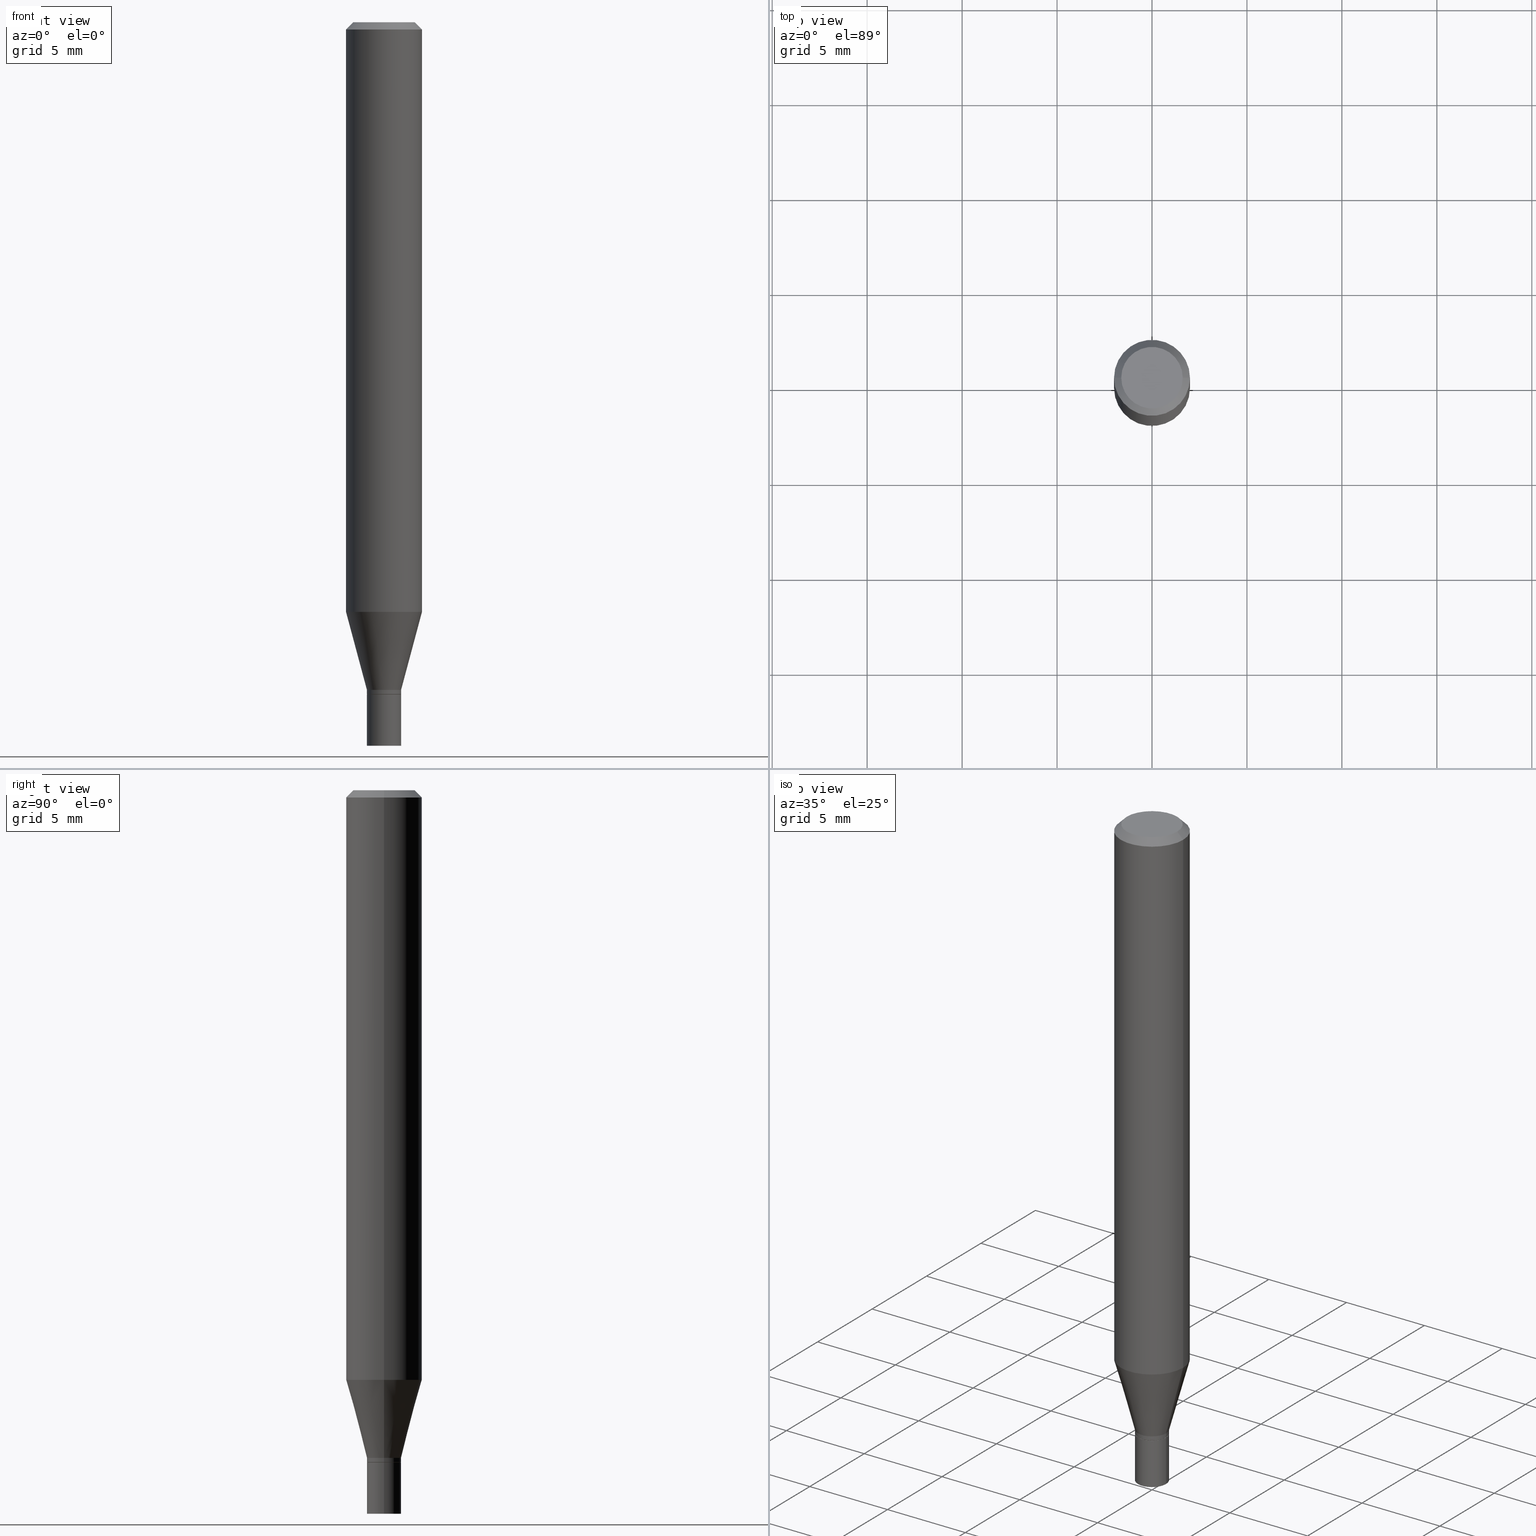
[diagram: canonical four-view strip — front | top / right | iso, engineering-drawing reading convention]
A machine part, canonical four-view strip (front | top / right | iso — engineering-drawing reading convention). The complete STEP part file that produces these views, byte-faithful:
ISO-10303-21;
HEADER;
FILE_DESCRIPTION (( 'STEP AP203' ),
    '1' );
FILE_NAME ('02899.STEP',
    '2024-03-18T22:06:29',
    ( '' ),
    ( '' ),
    'SwSTEP 2.0',
    'SolidWorks 2023',
    '' );
FILE_SCHEMA (( 'CONFIG_CONTROL_DESIGN' ));
ENDSEC;

DATA;
#1 = ORIENTED_EDGE ( 'NONE', *, *, #141, .T. ) ;
#2 = APPLICATION_PROTOCOL_DEFINITION ( 'international standard', 'config_control_design', 1994, #364 ) ;
#3 = ORIENTED_EDGE ( 'NONE', *, *, #255, .T. ) ;
#4 = CARTESIAN_POINT ( 'NONE',  ( -0.03544999999999992601, -4.612444401449317008E-15, -1.393200000000000216 ) ) ;
#5 = DIRECTION ( 'NONE',  ( -2.445468806185136597E-29, 3.491481338843145583E-15, 1.000000000000000000 ) ) ;
#6 = DATE_TIME_ROLE ( 'creation_date' ) ;
#7 = ORIENTED_EDGE ( 'NONE', *, *, #426, .F. ) ;
#8 = DIRECTION ( 'NONE',  ( 2.445468806185136597E-29, -3.491481338843145583E-15, -1.000000000000000000 ) ) ;
#9 = PERSON_AND_ORGANIZATION ( #425, #453 ) ;
#10 = CONICAL_SURFACE ( 'NONE', #260, 0.07875000000000000056, 0.7853981633974415066 ) ;
#11 = VECTOR ( 'NONE', #195, 39.37007874015748143 ) ;
#12 = LINE ( 'NONE', #269, #11 ) ;
#13 = EDGE_CURVE ( 'NONE', #17, #87, #405, .T. ) ;
#14 = DIRECTION ( 'NONE',  ( -2.445468806185136597E-29, 3.491481338843145583E-15, 1.000000000000000000 ) ) ;
#15 = CARTESIAN_POINT ( 'NONE',  ( 0.03495000000000000190, -5.110132087530827984E-15, -1.393700000000000161 ) ) ;
#16 = ORIENTED_EDGE ( 'NONE', *, *, #300, .T. ) ;
#17 = VERTEX_POINT ( 'NONE', #464 ) ;
#18 = EDGE_LOOP ( 'NONE', ( #52, #94, #392, #199 ) ) ;
#19 = ADVANCED_FACE ( 'NONE', ( #290 ), #135, .T. ) ;
#20 = EDGE_LOOP ( 'NONE', ( #51, #167 ) ) ;
#21 = CIRCLE ( 'NONE', #433, 0.07875000000000000056 ) ;
#22 = CARTESIAN_POINT ( 'NONE',  ( -0.03544999999999992601, 2.518873998269549902E-16, -1.743762489495360585E-30 ) ) ;
#23 = CARTESIAN_POINT ( 'NONE',  ( 3.407027140777133395E-29, -4.864331801276271604E-15, -1.393200000000000216 ) ) ;
#24 = VERTEX_POINT ( 'NONE', #328 ) ;
#25 = FACE_OUTER_BOUND ( 'NONE', #153, .T. ) ;
#26 = DIRECTION ( 'NONE',  ( -2.445468806185136877E-29, 3.491481338843145188E-15, 1.000000000000000000 ) ) ;
#27 = EDGE_LOOP ( 'NONE', ( #344, #130, #105, #196 ) ) ;
#28 = CARTESIAN_POINT ( 'NONE',  ( 0.03495000000000000190, -5.110132087530827984E-15, -1.393700000000000161 ) ) ;
#29 = EDGE_LOOP ( 'NONE', ( #68, #316, #446, #91 ) ) ;
#30 = VECTOR ( 'NONE', #247, 39.37007874015748143 ) ;
#31 = ADVANCED_FACE ( 'NONE', ( #358 ), #291, .T. ) ;
#32 = SHAPE_DEFINITION_REPRESENTATION ( #128, #108 ) ;
#33 = CARTESIAN_POINT ( 'NONE',  ( -0.07875000000000001443, -3.708442065562388790E-15, -1.222402200032267405 ) ) ;
#34 = DIRECTION ( 'NONE',  ( -0.7071067811865656694, 7.493145998870420424E-15, 0.7071067811865294761 ) ) ;
#35 = AXIS2_PLACEMENT_3D ( 'NONE', #40, #407, #435 ) ;
#36 = AXIS2_PLACEMENT_3D ( 'NONE', #341, #444, #119 ) ;
#37 = DIRECTION ( 'NONE',  ( 0.2588190451025209615, 1.565188264969624926E-15, 0.9659258262890682012 ) ) ;
#38 = DIRECTION ( 'NONE',  ( 2.445468806185136597E-29, -3.491481338843145583E-15, -1.000000000000000000 ) ) ;
#39 = CIRCLE ( 'NONE', #331, 0.03495000000000000190 ) ;
#40 = CARTESIAN_POINT ( 'NONE',  ( 3.408249875180225636E-29, -4.866077541945693107E-15, -1.393700000000000161 ) ) ;
#41 = AXIS2_PLACEMENT_3D ( 'NONE', #315, #420, #95 ) ;
#42 = CARTESIAN_POINT ( 'NONE',  ( 0.03544999999999992601, -5.079756199882890666E-15, -1.384000000000000119 ) ) ;
#43 = ORIENTED_EDGE ( 'NONE', *, *, #366, .F. ) ;
#44 =( CONVERSION_BASED_UNIT ( 'INCH', #369 ) LENGTH_UNIT ( ) NAMED_UNIT ( #53 ) );
#45 = DIRECTION ( 'NONE',  ( -2.445468806185136597E-29, 3.491481338843145583E-15, 1.000000000000000000 ) ) ;
#46 = PERSON_AND_ORGANIZATION ( #425, #453 ) ;
#47 = ADVANCED_FACE ( 'NONE', ( #259 ), #357, .T. ) ;
#48 = ORIENTED_EDGE ( 'NONE', *, *, #249, .T. ) ;
#49 = APPLICATION_PROTOCOL_DEFINITION ( 'international standard', 'config_control_design', 1994, #207 ) ;
#50 = AXIS2_PLACEMENT_3D ( 'NONE', #157, #187, #252 ) ;
#51 = ORIENTED_EDGE ( 'NONE', *, *, #238, .T. ) ;
#52 = ORIENTED_EDGE ( 'NONE', *, *, #83, .T. ) ;
#53 = DIMENSIONAL_EXPONENTS ( 1.000000000000000000, 0.000000000000000000, 0.000000000000000000, 0.000000000000000000, 0.000000000000000000, 0.000000000000000000, 0.000000000000000000 ) ;
#54 = CALENDAR_DATE ( 2024, 18, 3 ) ;
#55 = ADVANCED_FACE ( 'NONE', ( #439 ), #324, .T. ) ;
#56 = VERTEX_POINT ( 'NONE', #370 ) ;
#57 = DIRECTION ( 'NONE',  ( 1.000000000000000000, -6.982962677686266711E-15, 4.876176775795935793E-29 ) ) ;
#58 = ORIENTED_EDGE ( 'NONE', *, *, #147, .F. ) ;
#59 = ORIENTED_EDGE ( 'NONE', *, *, #449, .F. ) ;
#60 = DIRECTION ( 'NONE',  ( 2.438088387897960049E-29, -3.491481338843145188E-15, -1.000000000000000000 ) ) ;
#61 = AXIS2_PLACEMENT_3D ( 'NONE', #333, #5, #189 ) ;
#62 = CONICAL_SURFACE ( 'NONE', #35, 0.03495000000000000190, 0.7853981633974739252 ) ;
#63 = ORIENTED_EDGE ( 'NONE', *, *, #396, .T. ) ;
#64 = PRODUCT_DEFINITION_FORMATION_WITH_SPECIFIED_SOURCE ( 'ANY', '', #310, .NOT_KNOWN. ) ;
#65 = DIRECTION ( 'NONE',  ( -1.000000000000000000, 6.982962677686265922E-15, -4.876176775795935793E-29 ) ) ;
#66 = APPROVAL_ROLE ( '' ) ;
#67 = LINE ( 'NONE', #208, #143 ) ;
#68 = ORIENTED_EDGE ( 'NONE', *, *, #249, .F. ) ;
#69 = ADVANCED_FACE ( 'NONE', ( #227 ), #62, .T. ) ;
#70 = AXIS2_PLACEMENT_3D ( 'NONE', #142, #356, #283 ) ;
#71 = FACE_OUTER_BOUND ( 'NONE', #150, .T. ) ;
#72 = ADVANCED_FACE ( 'NONE', ( #121 ), #10, .T. ) ;
#73 = LINE ( 'NONE', #100, #30 ) ;
#74 = EDGE_CURVE ( 'NONE', #429, #161, #403, .T. ) ;
#75 = UNCERTAINTY_MEASURE_WITH_UNIT (LENGTH_MEASURE( 1.000000000000000082E-05 ), #44, 'distance_accuracy_value', 'NONE');
#76 = CIRCLE ( 'NONE', #313, 0.07875000000000000056 ) ;
#77 = MANIFOLD_SOLID_BREP ( 'Body-Move/Copy2[2]', #325 ) ;
#78 = CARTESIAN_POINT ( 'NONE',  ( 3.668203209277705088E-31, -5.237222008264718399E-17, -0.01499999999999999944 ) ) ;
#79 = DIRECTION ( 'NONE',  ( -2.445468806185136597E-29, 3.491481338843145583E-15, 1.000000000000000000 ) ) ;
#80 = CIRCLE ( 'NONE', #378, 0.03544999999999992601 ) ;
#81 = DIRECTION ( 'NONE',  ( 1.000000000000000000, -6.982962677686269077E-15, 0.000000000000000000 ) ) ;
#82 = CC_DESIGN_APPROVAL ( #168, ( #185 ) ) ;
#83 = EDGE_CURVE ( 'NONE', #456, #56, #394, .T. ) ;
#84 = ADVANCED_FACE ( 'NONE', ( #112 ), #225, .F. ) ;
#85 = PERSON_AND_ORGANIZATION_ROLE ( 'creator' ) ;
#86 = PERSON_AND_ORGANIZATION ( #425, #453 ) ;
#87 = VERTEX_POINT ( 'NONE', #98 ) ;
#88 = DATE_AND_TIME ( #113, #265 ) ;
#89 = DIRECTION ( 'NONE',  ( 1.000000000000000000, -6.982962677686265922E-15, 4.852736867747365646E-29 ) ) ;
#90 = FACE_OUTER_BOUND ( 'NONE', #160, .T. ) ;
#91 = ORIENTED_EDGE ( 'NONE', *, *, #216, .F. ) ;
#92 = ORIENTED_EDGE ( 'NONE', *, *, #460, .T. ) ;
#93 = CARTESIAN_POINT ( 'NONE',  ( 4.451638707024993845E-16, 0.06375000000000000111, -1.187890929748605601E-16 ) ) ;
#94 = ORIENTED_EDGE ( 'NONE', *, *, #274, .T. ) ;
#95 = DIRECTION ( 'NONE',  ( 1.000000000000000000, -6.982962677686254089E-15, 0.000000000000000000 ) ) ;
#96 = AXIS2_PLACEMENT_3D ( 'NONE', #296, #362, #57 ) ;
#97 = DIRECTION ( 'NONE',  ( -2.445468806185136597E-29, 3.491481338843145583E-15, 1.000000000000000000 ) ) ;
#98 = CARTESIAN_POINT ( 'NONE',  ( -0.07875000000000000056, -1.600630940616978731E-15, -0.01499999999999999944 ) ) ;
#99 = LINE ( 'NONE', #455, #354 ) ;
#100 = CARTESIAN_POINT ( 'NONE',  ( 0.07875000000000000056, -5.499083108677934443E-16, 3.839989210939299016E-30 ) ) ;
#101 = EDGE_LOOP ( 'NONE', ( #408, #7, #332, #16 ) ) ;
#102 = EDGE_CURVE ( 'NONE', #237, #17, #73, .T. ) ;
#103 = CC_DESIGN_PERSON_AND_ORGANIZATION_ASSIGNMENT ( #186, #436, ( #185 ) ) ;
#104 = APPROVAL_PERSON_ORGANIZATION ( #443, #168, #219 ) ;
#105 = ORIENTED_EDGE ( 'NONE', *, *, #102, .T. ) ;
#106 = DIRECTION ( 'NONE',  ( 1.000000000000000000, -6.982962677686265922E-15, 4.876176775795935232E-29 ) ) ;
#107 = AXIS2_PLACEMENT_3D ( 'NONE', #170, #423, #136 ) ;
#108 = ADVANCED_BREP_SHAPE_REPRESENTATION ( '02899', ( #376, #77, #285 ), #365 ) ;
#109 = EDGE_CURVE ( 'NONE', #456, #429, #454, .T. ) ;
#110 = CARTESIAN_POINT ( 'NONE',  ( 3.408249875180225636E-29, -4.866077541945693107E-15, -1.393700000000000161 ) ) ;
#111 = CARTESIAN_POINT ( 'NONE',  ( 0.000000000000000000, 0.000000000000000000, 0.000000000000000000 ) ) ;
#112 = FACE_OUTER_BOUND ( 'NONE', #126, .T. ) ;
#113 = CALENDAR_DATE ( 2024, 18, 3 ) ;
#114 = ADVANCED_FACE ( 'NONE', ( #140 ), #176, .T. ) ;
#115 = ADVANCED_FACE ( 'NONE', ( #71 ), #388, .T. ) ;
#116 = DIRECTION ( 'NONE',  ( -2.445468806185136597E-29, 3.491481338843145583E-15, 1.000000000000000000 ) ) ;
#117 = CARTESIAN_POINT ( 'NONE',  ( -0.07875000000000000056, 4.975360907851462665E-16, -0.01499999999999999944 ) ) ;
#118 = CIRCLE ( 'NONE', #271, 0.03545000000000000234 ) ;
#119 = DIRECTION ( 'NONE',  ( 1.000000000000000000, -6.982962677686269077E-15, 0.000000000000000000 ) ) ;
#120 = AXIS2_PLACEMENT_3D ( 'NONE', #308, #293, #89 ) ;
#121 = FACE_OUTER_BOUND ( 'NONE', #124, .T. ) ;
#122 = APPROVAL_DATE_TIME ( #339, #462 ) ;
#123 = CONICAL_SURFACE ( 'NONE', #428, 0.03495000000000000190, 0.7853981633974739252 ) ;
#124 = EDGE_LOOP ( 'NONE', ( #270, #239, #254, #367 ) ) ;
#125 = COORDINATED_UNIVERSAL_TIME_OFFSET ( 5, 0, .BEHIND. ) ;
#126 = EDGE_LOOP ( 'NONE', ( #282, #171 ) ) ;
#127 = APPROVAL_STATUS ( 'not_yet_approved' ) ;
#128 = PRODUCT_DEFINITION_SHAPE ( 'NONE', 'NONE',  #185 ) ;
#129 = AXIS2_PLACEMENT_3D ( 'NONE', #93, #243, #65 ) ;
#130 = ORIENTED_EDGE ( 'NONE', *, *, #366, .T. ) ;
#131 = CC_DESIGN_PERSON_AND_ORGANIZATION_ASSIGNMENT ( #9, #268, ( #64 ) ) ;
#132 = VERTEX_POINT ( 'NONE', #33 ) ;
#133 = DIRECTION ( 'NONE',  ( -2.445468806185136597E-29, 3.491481338843145583E-15, 1.000000000000000000 ) ) ;
#134 = DIRECTION ( 'NONE',  ( -1.000000000000000000, 6.982962677686265922E-15, -4.876176775795935793E-29 ) ) ;
#135 = CONICAL_SURFACE ( 'NONE', #244, 0.07875000000000000056, 0.7853981633974415066 ) ;
#136 = DIRECTION ( 'NONE',  ( 1.000000000000000000, -6.982962677686265922E-15, 4.852736867747365646E-29 ) ) ;
#137 = CARTESIAN_POINT ( 'NONE',  ( 0.03544999999999992601, -5.111877828200249487E-15, -1.393200000000000216 ) ) ;
#138 = LOCAL_TIME ( 18, 6, 29.00000000000000000, #342 ) ;
#139 = DIRECTION ( 'NONE',  ( -2.445468806185136877E-29, 3.491481338843145188E-15, 1.000000000000000000 ) ) ;
#140 = FACE_OUTER_BOUND ( 'NONE', #27, .T. ) ;
#141 = EDGE_CURVE ( 'NONE', #452, #411, #118, .T. ) ;
#142 = CARTESIAN_POINT ( 'NONE',  ( 3.384528827760229323E-29, -4.832210172958913572E-15, -1.384000000000000119 ) ) ;
#143 = VECTOR ( 'NONE', #26, 39.37007874015748143 ) ;
#144 = CARTESIAN_POINT ( 'NONE',  ( 0.000000000000000000, 0.000000000000000000, 0.000000000000000000 ) ) ;
#145 = DIRECTION ( 'NONE',  ( 1.000000000000000000, -6.982962677686265922E-15, 0.000000000000000000 ) ) ;
#146 = DIRECTION ( 'NONE',  ( 1.000000000000000000, -6.982962677686261977E-15, 0.000000000000000000 ) ) ;
#147 = EDGE_CURVE ( 'NONE', #56, #456, #39, .T. ) ;
#148 = LINE ( 'NONE', #175, #326 ) ;
#149 = CIRCLE ( 'NONE', #222, 0.07875000000000000056 ) ;
#150 = EDGE_LOOP ( 'NONE', ( #211, #350, #297, #235 ) ) ;
#151 = DIRECTION ( 'NONE',  ( -2.445468806185136877E-29, 3.491481338843145188E-15, 1.000000000000000000 ) ) ;
#152 = ADVANCED_FACE ( 'NONE', ( #287 ), #262, .F. ) ;
#153 = EDGE_LOOP ( 'NONE', ( #1, #48, #440, #248 ) ) ;
#154 = FACE_OUTER_BOUND ( 'NONE', #162, .T. ) ;
#155 = CALENDAR_DATE ( 2024, 18, 3 ) ;
#156 = PLANE ( 'NONE',  #203 ) ;
#157 = CARTESIAN_POINT ( 'NONE',  ( 3.576687321579069994E-29, -5.368277968210015545E-15, -1.500000000000000222 ) ) ;
#158 =( LENGTH_UNIT ( ) NAMED_UNIT ( * ) SI_UNIT ( $, .METRE. ) );
#159 = CARTESIAN_POINT ( 'NONE',  ( 0.000000000000000000, 0.000000000000000000, 0.000000000000000000 ) ) ;
#160 = EDGE_LOOP ( 'NONE', ( #347, #3 ) ) ;
#161 = VERTEX_POINT ( 'NONE', #200 ) ;
#162 = EDGE_LOOP ( 'NONE', ( #343, #442, #398, #384 ) ) ;
#163 = CIRCLE ( 'NONE', #312, 0.03545000000000000234 ) ;
#164 = VECTOR ( 'NONE', #37, 39.37007874015748143 ) ;
#165 = DIRECTION ( 'NONE',  ( -2.445468806185136597E-29, 3.491481338843145583E-15, 1.000000000000000000 ) ) ;
#166 = EDGE_CURVE ( 'NONE', #411, #452, #163, .T. ) ;
#167 = ORIENTED_EDGE ( 'NONE', *, *, #216, .T. ) ;
#168 = APPROVAL ( #127, 'UNSPECIFIED' ) ;
#169 = CARTESIAN_POINT ( 'NONE',  ( 3.408249875180225636E-29, -4.866077541945693107E-15, -1.393700000000000161 ) ) ;
#170 = CARTESIAN_POINT ( 'NONE',  ( -5.076443166735047805E-45, 7.247815445253071091E-31, 2.075856847527799160E-16 ) ) ;
#171 = ORIENTED_EDGE ( 'NONE', *, *, #166, .F. ) ;
#172 = CC_DESIGN_SECURITY_CLASSIFICATION ( #178, ( #64 ) ) ;
#173 = ORIENTED_EDGE ( 'NONE', *, *, #13, .F. ) ;
#174 = COORDINATED_UNIVERSAL_TIME_OFFSET ( 5, 0, .BEHIND. ) ;
#175 = CARTESIAN_POINT ( 'NONE',  ( -0.03495000000000000190, -4.617742855797537832E-15, -1.393700000000000161 ) ) ;
#176 = CYLINDRICAL_SURFACE ( 'NONE', #352, 0.07875000000000000056 ) ;
#177 = CARTESIAN_POINT ( 'NONE',  ( 3.668203209277704895E-29, -5.237222008264718177E-15, -1.500000000000000222 ) ) ;
#178 = SECURITY_CLASSIFICATION ( '', '', #409 ) ;
#179 = EDGE_CURVE ( 'NONE', #371, #307, #205, .T. ) ;
#180 = CYLINDRICAL_SURFACE ( 'NONE', #406, 0.03544999999999992601 ) ;
#181 = DIRECTION ( 'NONE',  ( -1.000000000000000000, 6.982962677686265922E-15, 0.000000000000000000 ) ) ;
#182 = CC_DESIGN_APPROVAL ( #462, ( #64 ) ) ;
#183 = DIRECTION ( 'NONE',  ( -2.445468806185136597E-29, 3.491481338843145583E-15, 1.000000000000000000 ) ) ;
#184 = DIRECTION ( 'NONE',  ( -2.445468806185136877E-29, 3.491481338843145188E-15, 1.000000000000000000 ) ) ;
#185 = PRODUCT_DEFINITION ( 'UNKNOWN', '', #64, #311 ) ;
#186 = PERSON_AND_ORGANIZATION ( #425, #453 ) ;
#187 = DIRECTION ( 'NONE',  ( -2.438088387897960049E-29, 3.491481338843145188E-15, 1.000000000000000000 ) ) ;
#188 = DATE_AND_TIME ( #155, #372 ) ;
#189 = DIRECTION ( 'NONE',  ( 1.000000000000000000, -6.982962677686267499E-15, 0.000000000000000000 ) ) ;
#190 = DIRECTION ( 'NONE',  ( 0.000000000000000000, 0.000000000000000000, 1.000000000000000000 ) ) ;
#191 = CLOSED_SHELL ( 'NONE', ( #230, #84, #47, #152 ) ) ;
#192 = APPROVAL_ROLE ( '' ) ;
#193 = DIRECTION ( 'NONE',  ( 1.000000000000000000, -6.982962677686265922E-15, 4.876176775795935793E-29 ) ) ;
#194 = PERSON_AND_ORGANIZATION_ROLE ( 'design_owner' ) ;
#195 = DIRECTION ( 'NONE',  ( 0.7071067811865426878, -7.319954787623238690E-15, -0.7071067811865523467 ) ) ;
#196 = ORIENTED_EDGE ( 'NONE', *, *, #300, .F. ) ;
#197 = CC_DESIGN_DATE_AND_TIME_ASSIGNMENT ( #386, #276, ( #178 ) ) ;
#198 = CARTESIAN_POINT ( 'NONE',  ( 0.07875000000000001443, -4.817902780841260937E-15, -1.222402200032267405 ) ) ;
#199 = ORIENTED_EDGE ( 'NONE', *, *, #109, .F. ) ;
#200 = CARTESIAN_POINT ( 'NONE',  ( 0.03544999999999992601, -5.079756199882890666E-15, -1.384000000000000119 ) ) ;
#201 = EDGE_CURVE ( 'NONE', #307, #161, #80, .T. ) ;
#202 = CIRCLE ( 'NONE', #458, 0.03545000000000000234 ) ;
#203 = AXIS2_PLACEMENT_3D ( 'NONE', #401, #410, #193 ) ;
#204 = ORIENTED_EDGE ( 'NONE', *, *, #323, .T. ) ;
#205 = LINE ( 'NONE', #22, #220 ) ;
#206 = DIRECTION ( 'NONE',  ( -2.445468806185136597E-29, 3.491481338843145583E-15, 1.000000000000000000 ) ) ;
#207 = APPLICATION_CONTEXT ( 'configuration controlled 3d designs of mechanical parts and assemblies' ) ;
#208 = CARTESIAN_POINT ( 'NONE',  ( -0.03545000000000000234, 2.518873998269555325E-16, -1.743762489495364089E-30 ) ) ;
#209 = EDGE_LOOP ( 'NONE', ( #210, #92, #173, #234 ) ) ;
#210 = ORIENTED_EDGE ( 'NONE', *, *, #337, .T. ) ;
#211 = ORIENTED_EDGE ( 'NONE', *, *, #449, .T. ) ;
#212 = DIRECTION ( 'NONE',  ( 0.7071067811865656694, -2.468850131082446387E-15, 0.7071067811865294761 ) ) ;
#213 = CC_DESIGN_PERSON_AND_ORGANIZATION_ASSIGNMENT ( #340, #85, ( #64 ) ) ;
#214 = VECTOR ( 'NONE', #184, 39.37007874015748143 ) ;
#215 = LINE ( 'NONE', #42, #164 ) ;
#216 = EDGE_CURVE ( 'NONE', #279, #24, #202, .T. ) ;
#217 = CARTESIAN_POINT ( 'NONE',  ( -0.03545000000000000234, -4.799762375278250257E-15, -1.393700000000000161 ) ) ;
#218 = DIRECTION ( 'NONE',  ( -2.445468806185136597E-29, 3.491481338843145583E-15, 1.000000000000000000 ) ) ;
#219 = APPROVAL_ROLE ( '' ) ;
#220 = VECTOR ( 'NONE', #375, 39.37007874015748143 ) ;
#221 = DIRECTION ( 'NONE',  ( 1.000000000000000000, -6.982962677686266711E-15, 4.876176775795935793E-29 ) ) ;
#222 = AXIS2_PLACEMENT_3D ( 'NONE', #399, #79, #334 ) ;
#223 = ADVANCED_FACE ( 'NONE', ( #90 ), #348, .F. ) ;
#224 = EDGE_LOOP ( 'NONE', ( #246, #424, #204, #43 ) ) ;
#225 = PLANE ( 'NONE',  #50 ) ;
#226 = FACE_OUTER_BOUND ( 'NONE', #445, .T. ) ;
#227 = FACE_OUTER_BOUND ( 'NONE', #18, .T. ) ;
#228 = CARTESIAN_POINT ( 'NONE',  ( 0.03545000000000000234, -5.484768035188696060E-15, -1.500000000000000222 ) ) ;
#229 = PERSON_AND_ORGANIZATION_ROLE ( 'classification_officer' ) ;
#230 = ADVANCED_FACE ( 'NONE', ( #25 ), #317, .T. ) ;
#231 = ORIENTED_EDGE ( 'NONE', *, *, #83, .F. ) ;
#232 = VECTOR ( 'NONE', #432, 39.37007874015748143 ) ;
#233 = COORDINATED_UNIVERSAL_TIME_OFFSET ( 5, 0, .BEHIND. ) ;
#234 = ORIENTED_EDGE ( 'NONE', *, *, #102, .F. ) ;
#235 = ORIENTED_EDGE ( 'NONE', *, *, #323, .F. ) ;
#236 = APPROVAL ( #353, 'UNSPECIFIED' ) ;
#237 = VERTEX_POINT ( 'NONE', #198 ) ;
#238 = EDGE_CURVE ( 'NONE', #24, #279, #346, .T. ) ;
#239 = ORIENTED_EDGE ( 'NONE', *, *, #417, .T. ) ;
#240 = CARTESIAN_POINT ( 'NONE',  ( 3.668203209277704895E-29, -5.237222008264718177E-15, -1.500000000000000222 ) ) ;
#241 = ORIENTED_EDGE ( 'NONE', *, *, #147, .T. ) ;
#242 = CALENDAR_DATE ( 2024, 18, 3 ) ;
#243 = DIRECTION ( 'NONE',  ( 2.438088387897960049E-29, -3.491481338843145188E-15, -1.000000000000000000 ) ) ;
#244 = AXIS2_PLACEMENT_3D ( 'NONE', #78, #38, #181 ) ;
#245 = LOCAL_TIME ( 18, 6, 29.00000000000000000, #174 ) ;
#246 = ORIENTED_EDGE ( 'NONE', *, *, #402, .F. ) ;
#247 = DIRECTION ( 'NONE',  ( -2.445468806185136877E-29, 3.491481338843145188E-15, 1.000000000000000000 ) ) ;
#248 = ORIENTED_EDGE ( 'NONE', *, *, #258, .F. ) ;
#249 = EDGE_CURVE ( 'NONE', #411, #279, #67, .T. ) ;
#250 = VECTOR ( 'NONE', #212, 39.37007874015748143 ) ;
#251 = DIRECTION ( 'NONE',  ( -2.445468806185136597E-29, 3.491481338843145583E-15, 1.000000000000000000 ) ) ;
#252 = DIRECTION ( 'NONE',  ( 1.000000000000000000, -6.982962677686265922E-15, 4.876176775795935793E-29 ) ) ;
#253 = CARTESIAN_POINT ( 'NONE',  ( 0.000000000000000000, 0.000000000000000000, 0.000000000000000000 ) ) ;
#254 = ORIENTED_EDGE ( 'NONE', *, *, #13, .T. ) ;
#255 = EDGE_CURVE ( 'NONE', #377, #338, #320, .T. ) ;
#256 = CYLINDRICAL_SURFACE ( 'NONE', #389, 0.03544999999999992601 ) ;
#257 = DIRECTION ( 'NONE',  ( -2.445468806185136597E-29, 3.491481338843145583E-15, 1.000000000000000000 ) ) ;
#258 = EDGE_CURVE ( 'NONE', #452, #24, #99, .T. ) ;
#259 = FACE_OUTER_BOUND ( 'NONE', #29, .T. ) ;
#260 = AXIS2_PLACEMENT_3D ( 'NONE', #368, #8, #267 ) ;
#261 = CC_DESIGN_APPROVAL ( #236, ( #178 ) ) ;
#262 = PLANE ( 'NONE',  #284 ) ;
#263 = DIRECTION ( 'NONE',  ( -2.445468806185136597E-29, 3.491481338843145583E-15, 1.000000000000000000 ) ) ;
#264 = DIRECTION ( 'NONE',  ( 1.000000000000000000, 0.000000000000000000, 0.000000000000000000 ) ) ;
#265 = LOCAL_TIME ( 18, 6, 29.00000000000000000, #233 ) ;
#266 = LINE ( 'NONE', #289, #232 ) ;
#267 = DIRECTION ( 'NONE',  ( -1.000000000000000000, 6.982962677686265922E-15, 0.000000000000000000 ) ) ;
#268 = PERSON_AND_ORGANIZATION_ROLE ( 'design_supplier' ) ;
#269 = CARTESIAN_POINT ( 'NONE',  ( 0.07875000000000000056, -5.926364374071552647E-16, -0.01499999999999999944 ) ) ;
#270 = ORIENTED_EDGE ( 'NONE', *, *, #255, .F. ) ;
#271 = AXIS2_PLACEMENT_3D ( 'NONE', #177, #133, #278 ) ;
#272 = EDGE_LOOP ( 'NONE', ( #63, #273, #59, #321 ) ) ;
#273 = ORIENTED_EDGE ( 'NONE', *, *, #179, .T. ) ;
#274 = EDGE_CURVE ( 'NONE', #56, #371, #148, .T. ) ;
#275 = CARTESIAN_POINT ( 'NONE',  ( -0.03545000000000000234, -4.799762375278250257E-15, -1.500000000000000222 ) ) ;
#276 = DATE_TIME_ROLE ( 'classification_date' ) ;
#277 = DIRECTION ( 'NONE',  ( 1.000000000000000000, -6.982962677686254089E-15, 0.000000000000000000 ) ) ;
#278 = DIRECTION ( 'NONE',  ( 1.000000000000000000, -6.982962677686254089E-15, 0.000000000000000000 ) ) ;
#279 = VERTEX_POINT ( 'NONE', #217 ) ;
#280 = AXIS2_PLACEMENT_3D ( 'NONE', #144, #390, #457 ) ;
#281 = DIRECTION ( 'NONE',  ( 1.000000000000000000, -6.982962677686265922E-15, 4.876176775795935232E-29 ) ) ;
#282 = ORIENTED_EDGE ( 'NONE', *, *, #141, .F. ) ;
#283 = DIRECTION ( 'NONE',  ( 1.000000000000000000, -6.982962677686269077E-15, 0.000000000000000000 ) ) ;
#284 = AXIS2_PLACEMENT_3D ( 'NONE', #461, #60, #134 ) ;
#285 = AXIS2_PLACEMENT_3D ( 'NONE', #159, #190, #264 ) ;
#286 = ADVANCED_FACE ( 'NONE', ( #154 ), #180, .T. ) ;
#287 = FACE_OUTER_BOUND ( 'NONE', #20, .T. ) ;
#288 = FACE_OUTER_BOUND ( 'NONE', #272, .T. ) ;
#289 = CARTESIAN_POINT ( 'NONE',  ( -0.03544999999999992601, -4.580322773131958187E-15, -1.384000000000000119 ) ) ;
#290 = FACE_OUTER_BOUND ( 'NONE', #101, .T. ) ;
#291 = CYLINDRICAL_SURFACE ( 'NONE', #414, 0.07875000000000000056 ) ;
#292 = FACE_OUTER_BOUND ( 'NONE', #373, .T. ) ;
#293 = DIRECTION ( 'NONE',  ( -2.445468806185136597E-29, 3.491481338843145583E-15, 1.000000000000000000 ) ) ;
#294 = APPROVAL_PERSON_ORGANIZATION ( #319, #236, #66 ) ;
#295 = CARTESIAN_POINT ( 'NONE',  ( 3.384528827760229323E-29, -4.832210172958913572E-15, -1.384000000000000119 ) ) ;
#296 = CARTESIAN_POINT ( 'NONE',  ( 0.000000000000000000, 0.000000000000000000, 0.000000000000000000 ) ) ;
#297 = ORIENTED_EDGE ( 'NONE', *, *, #337, .F. ) ;
#298 = CARTESIAN_POINT ( 'NONE',  ( 0.06375000000000000111, -5.149965923825448321E-16, 2.075856847527832686E-16 ) ) ;
#299 = APPROVAL_STATUS ( 'not_yet_approved' ) ;
#300 = EDGE_CURVE ( 'NONE', #87, #17, #76, .T. ) ;
#301 = AXIS2_PLACEMENT_3D ( 'NONE', #23, #14, #385 ) ;
#302 = CC_DESIGN_PERSON_AND_ORGANIZATION_ASSIGNMENT ( #336, #194, ( #310 ) ) ;
#303 = CARTESIAN_POINT ( 'NONE',  ( 3.668203209277705088E-31, -5.237222008264718399E-17, -0.01499999999999999944 ) ) ;
#304 = DIRECTION ( 'NONE',  ( -0.7071067811865426878, 2.468850131082206573E-15, -0.7071067811865523467 ) ) ;
#305 =( NAMED_UNIT ( * ) SI_UNIT ( $, .STERADIAN. ) SOLID_ANGLE_UNIT ( ) );
#306 = MECHANICAL_CONTEXT ( 'NONE', #207, 'mechanical' ) ;
#307 = VERTEX_POINT ( 'NONE', #431 ) ;
#308 = CARTESIAN_POINT ( 'NONE',  ( -5.076443166735047805E-45, 7.247815445253071091E-31, 2.075856847527799160E-16 ) ) ;
#309 = LINE ( 'NONE', #447, #466 ) ;
#310 = PRODUCT ( '02899', '02899', '', ( #306 ) ) ;
#311 = DESIGN_CONTEXT ( 'detailed design', #364, 'design' ) ;
#312 = AXIS2_PLACEMENT_3D ( 'NONE', #240, #345, #277 ) ;
#313 = AXIS2_PLACEMENT_3D ( 'NONE', #303, #327, #145 ) ;
#314 = DIRECTION ( 'NONE',  ( 1.000000000000000000, -6.982962677686269077E-15, 0.000000000000000000 ) ) ;
#315 = CARTESIAN_POINT ( 'NONE',  ( 3.408249875180225636E-29, -4.866077541945693107E-15, -1.393700000000000161 ) ) ;
#316 = ORIENTED_EDGE ( 'NONE', *, *, #166, .T. ) ;
#317 = CYLINDRICAL_SURFACE ( 'NONE', #96, 0.03545000000000000234 ) ;
#318 = ORIENTED_EDGE ( 'NONE', *, *, #274, .F. ) ;
#319 = PERSON_AND_ORGANIZATION ( #425, #453 ) ;
#320 = CIRCLE ( 'NONE', #107, 0.06375000000000000111 ) ;
#321 = ORIENTED_EDGE ( 'NONE', *, *, #74, .F. ) ;
#322 = CC_DESIGN_PERSON_AND_ORGANIZATION_ASSIGNMENT ( #86, #229, ( #178 ) ) ;
#323 = EDGE_CURVE ( 'NONE', #161, #237, #215, .T. ) ;
#324 = CONICAL_SURFACE ( 'NONE', #427, 0.03544999999999992601, 0.2617993877991496299 ) ;
#325 = CLOSED_SHELL ( 'NONE', ( #430, #69, #72, #31, #115, #55, #114, #19, #223, #383, #355, #286 ) ) ;
#326 = VECTOR ( 'NONE', #34, 39.37007874015748143 ) ;
#327 = DIRECTION ( 'NONE',  ( -2.445468806185136597E-29, 3.491481338843145583E-15, 1.000000000000000000 ) ) ;
#328 = CARTESIAN_POINT ( 'NONE',  ( 0.03545000000000000234, -5.113623568869670202E-15, -1.393700000000000161 ) ) ;
#329 = CARTESIAN_POINT ( 'NONE',  ( 0.000000000000000000, 0.000000000000000000, 0.000000000000000000 ) ) ;
#330 = CARTESIAN_POINT ( 'NONE',  ( 2.989346448790993832E-29, -4.267994469973468380E-15, -1.222402200032267405 ) ) ;
#331 = AXIS2_PLACEMENT_3D ( 'NONE', #380, #206, #451 ) ;
#332 = ORIENTED_EDGE ( 'NONE', *, *, #382, .T. ) ;
#333 = CARTESIAN_POINT ( 'NONE',  ( 3.408249875180225636E-29, -4.866077541945693107E-15, -1.393700000000000161 ) ) ;
#334 = DIRECTION ( 'NONE',  ( 1.000000000000000000, -6.982962677686261977E-15, 0.000000000000000000 ) ) ;
#335 = CARTESIAN_POINT ( 'NONE',  ( 0.03544999999999992601, -2.475460269239776370E-16, 1.728604667019655587E-30 ) ) ;
#336 = PERSON_AND_ORGANIZATION ( #425, #453 ) ;
#337 = EDGE_CURVE ( 'NONE', #237, #132, #21, .T. ) ;
#338 = VERTEX_POINT ( 'NONE', #465 ) ;
#339 = DATE_AND_TIME ( #54, #379 ) ;
#340 = PERSON_AND_ORGANIZATION ( #425, #453 ) ;
#341 = CARTESIAN_POINT ( 'NONE',  ( 3.407027140777133395E-29, -4.864331801276271604E-15, -1.393200000000000216 ) ) ;
#342 = COORDINATED_UNIVERSAL_TIME_OFFSET ( 5, 0, .BEHIND. ) ;
#343 = ORIENTED_EDGE ( 'NONE', *, *, #179, .F. ) ;
#344 = ORIENTED_EDGE ( 'NONE', *, *, #460, .F. ) ;
#345 = DIRECTION ( 'NONE',  ( -2.445468806185136597E-29, 3.491481338843145583E-15, 1.000000000000000000 ) ) ;
#346 = CIRCLE ( 'NONE', #41, 0.03545000000000000234 ) ;
#347 = ORIENTED_EDGE ( 'NONE', *, *, #426, .T. ) ;
#348 = PLANE ( 'NONE',  #129 ) ;
#349 = ORIENTED_EDGE ( 'NONE', *, *, #109, .T. ) ;
#350 = ORIENTED_EDGE ( 'NONE', *, *, #402, .T. ) ;
#351 = CARTESIAN_POINT ( 'NONE',  ( 0.000000000000000000, 0.000000000000000000, 0.000000000000000000 ) ) ;
#352 = AXIS2_PLACEMENT_3D ( 'NONE', #351, #387, #281 ) ;
#353 = APPROVAL_STATUS ( 'not_yet_approved' ) ;
#354 = VECTOR ( 'NONE', #139, 39.37007874015748143 ) ;
#355 = ADVANCED_FACE ( 'NONE', ( #292 ), #123, .T. ) ;
#356 = DIRECTION ( 'NONE',  ( -2.445468806185136597E-29, 3.491481338843145583E-15, 1.000000000000000000 ) ) ;
#357 = CYLINDRICAL_SURFACE ( 'NONE', #280, 0.03545000000000000234 ) ;
#358 = FACE_OUTER_BOUND ( 'NONE', #209, .T. ) ;
#359 = AXIS2_PLACEMENT_3D ( 'NONE', #393, #361, #463 ) ;
#360 = VECTOR ( 'NONE', #304, 39.37007874015748143 ) ;
#361 = DIRECTION ( 'NONE',  ( -2.445468806185136597E-29, 3.491481338843145583E-15, 1.000000000000000000 ) ) ;
#362 = DIRECTION ( 'NONE',  ( -2.445468806185136597E-29, 3.491481338843145583E-15, 1.000000000000000000 ) ) ;
#363 =( NAMED_UNIT ( * ) PLANE_ANGLE_UNIT ( ) SI_UNIT ( $, .RADIAN. ) );
#364 = APPLICATION_CONTEXT ( 'configuration controlled 3d designs of mechanical parts and assemblies' ) ;
#365 =( GEOMETRIC_REPRESENTATION_CONTEXT ( 3 ) GLOBAL_UNCERTAINTY_ASSIGNED_CONTEXT ( ( #75 ) ) GLOBAL_UNIT_ASSIGNED_CONTEXT ( ( #44, #363, #305 ) ) REPRESENTATION_CONTEXT ( 'NONE', 'WORKASPACE' ) );
#366 = EDGE_CURVE ( 'NONE', #132, #237, #149, .T. ) ;
#367 = ORIENTED_EDGE ( 'NONE', *, *, #382, .F. ) ;
#368 = CARTESIAN_POINT ( 'NONE',  ( 3.668203209277705088E-31, -5.237222008264718399E-17, -0.01499999999999999944 ) ) ;
#369 = LENGTH_MEASURE_WITH_UNIT ( LENGTH_MEASURE( 0.02539999999999999897 ), #158 );
#370 = CARTESIAN_POINT ( 'NONE',  ( -0.03495000000000000190, -4.615093628623426631E-15, -1.393700000000000161 ) ) ;
#371 = VERTEX_POINT ( 'NONE', #4 ) ;
#372 = LOCAL_TIME ( 18, 6, 29.00000000000000000, #404 ) ;
#373 = EDGE_LOOP ( 'NONE', ( #318, #241, #349, #391 ) ) ;
#374 = DATE_AND_TIME ( #242, #245 ) ;
#375 = DIRECTION ( 'NONE',  ( -2.445468806185136877E-29, 3.491481338843145188E-15, 1.000000000000000000 ) ) ;
#376 = MANIFOLD_SOLID_BREP ( 'Body-Move/Copy2[1]', #191 ) ;
#377 = VERTEX_POINT ( 'NONE', #298 ) ;
#378 = AXIS2_PLACEMENT_3D ( 'NONE', #422, #165, #314 ) ;
#379 = LOCAL_TIME ( 18, 6, 29.00000000000000000, #125 ) ;
#380 = CARTESIAN_POINT ( 'NONE',  ( 3.408249875180225636E-29, -4.866077541945693107E-15, -1.393700000000000161 ) ) ;
#381 = APPROVAL_PERSON_ORGANIZATION ( #46, #462, #192 ) ;
#382 = EDGE_CURVE ( 'NONE', #338, #87, #438, .T. ) ;
#383 = ADVANCED_FACE ( 'NONE', ( #226 ), #156, .F. ) ;
#384 = ORIENTED_EDGE ( 'NONE', *, *, #201, .F. ) ;
#385 = DIRECTION ( 'NONE',  ( 1.000000000000000000, -6.982962677686269077E-15, 0.000000000000000000 ) ) ;
#386 = DATE_AND_TIME ( #416, #138 ) ;
#387 = DIRECTION ( 'NONE',  ( -2.445468806185136597E-29, 3.491481338843145583E-15, 1.000000000000000000 ) ) ;
#388 = CONICAL_SURFACE ( 'NONE', #70, 0.03544999999999992601, 0.2617993877991496299 ) ;
#389 = AXIS2_PLACEMENT_3D ( 'NONE', #111, #218, #437 ) ;
#390 = DIRECTION ( 'NONE',  ( -2.445468806185136597E-29, 3.491481338843145583E-15, 1.000000000000000000 ) ) ;
#391 = ORIENTED_EDGE ( 'NONE', *, *, #413, .F. ) ;
#392 = ORIENTED_EDGE ( 'NONE', *, *, #396, .F. ) ;
#393 = CARTESIAN_POINT ( 'NONE',  ( 3.668203209277705088E-31, -5.237222008264718399E-17, -0.01499999999999999944 ) ) ;
#394 = CIRCLE ( 'NONE', #61, 0.03495000000000000190 ) ;
#395 = CIRCLE ( 'NONE', #36, 0.03544999999999992601 ) ;
#396 = EDGE_CURVE ( 'NONE', #429, #371, #395, .T. ) ;
#397 = DIRECTION ( 'NONE',  ( 1.000000000000000000, -6.982962677686267499E-15, 0.000000000000000000 ) ) ;
#398 = ORIENTED_EDGE ( 'NONE', *, *, #74, .T. ) ;
#399 = CARTESIAN_POINT ( 'NONE',  ( 2.989346448790993832E-29, -4.267994469973468380E-15, -1.222402200032267405 ) ) ;
#400 = PRODUCT_RELATED_PRODUCT_CATEGORY ( 'detail', '', ( #310 ) ) ;
#401 = CARTESIAN_POINT ( 'NONE',  ( 3.408249875180225636E-29, -4.866077541945693107E-15, -1.393700000000000161 ) ) ;
#402 = EDGE_CURVE ( 'NONE', #307, #132, #266, .T. ) ;
#403 = LINE ( 'NONE', #335, #214 ) ;
#404 = COORDINATED_UNIVERSAL_TIME_OFFSET ( 5, 0, .BEHIND. ) ;
#405 = CIRCLE ( 'NONE', #359, 0.07875000000000000056 ) ;
#406 = AXIS2_PLACEMENT_3D ( 'NONE', #329, #116, #221 ) ;
#407 = DIRECTION ( 'NONE',  ( -2.445468806185136597E-29, 3.491481338843145583E-15, 1.000000000000000000 ) ) ;
#408 = ORIENTED_EDGE ( 'NONE', *, *, #417, .F. ) ;
#409 = SECURITY_CLASSIFICATION_LEVEL ( 'unclassified' ) ;
#410 = DIRECTION ( 'NONE',  ( -2.438088387897960049E-29, 3.491481338843145188E-15, 1.000000000000000000 ) ) ;
#411 = VERTEX_POINT ( 'NONE', #275 ) ;
#412 = APPROVAL_DATE_TIME ( #188, #168 ) ;
#413 = EDGE_CURVE ( 'NONE', #371, #429, #421, .T. ) ;
#414 = AXIS2_PLACEMENT_3D ( 'NONE', #253, #257, #106 ) ;
#415 = CIRCLE ( 'NONE', #459, 0.03544999999999992601 ) ;
#416 = CALENDAR_DATE ( 2024, 18, 3 ) ;
#417 = EDGE_CURVE ( 'NONE', #377, #17, #12, .T. ) ;
#418 = DIRECTION ( 'NONE',  ( 1.000000000000000000, -6.982962677686254089E-15, 0.000000000000000000 ) ) ;
#419 = APPROVAL_DATE_TIME ( #374, #236 ) ;
#420 = DIRECTION ( 'NONE',  ( -2.445468806185136597E-29, 3.491481338843145583E-15, 1.000000000000000000 ) ) ;
#421 = CIRCLE ( 'NONE', #301, 0.03544999999999992601 ) ;
#422 = CARTESIAN_POINT ( 'NONE',  ( 3.384528827760229323E-29, -4.832210172958913572E-15, -1.384000000000000119 ) ) ;
#423 = DIRECTION ( 'NONE',  ( -2.445468806185136597E-29, 3.491481338843145583E-15, 1.000000000000000000 ) ) ;
#424 = ORIENTED_EDGE ( 'NONE', *, *, #201, .T. ) ;
#425 = PERSON ( 'UNSPECIFIED', 'UNSPECIFIED', 'UNSPECIFIED', ('UNSPECIFIED'), ('UNSPECIFIED'), ('UNSPECIFIED') ) ;
#426 = EDGE_CURVE ( 'NONE', #338, #377, #448, .T. ) ;
#427 = AXIS2_PLACEMENT_3D ( 'NONE', #295, #45, #441 ) ;
#428 = AXIS2_PLACEMENT_3D ( 'NONE', #110, #263, #397 ) ;
#429 = VERTEX_POINT ( 'NONE', #137 ) ;
#430 = ADVANCED_FACE ( 'NONE', ( #288 ), #256, .T. ) ;
#431 = CARTESIAN_POINT ( 'NONE',  ( -0.03544999999999992601, -4.144382419347173488E-15, -1.384000000000000119 ) ) ;
#432 = DIRECTION ( 'NONE',  ( -0.2588190451025209615, 5.211531920934547097E-15, 0.9659258262890682012 ) ) ;
#433 = AXIS2_PLACEMENT_3D ( 'NONE', #330, #183, #146 ) ;
#434 = CARTESIAN_POINT ( 'NONE',  ( 3.384528827760229323E-29, -4.832210172958913572E-15, -1.384000000000000119 ) ) ;
#435 = DIRECTION ( 'NONE',  ( 1.000000000000000000, -6.982962677686267499E-15, 0.000000000000000000 ) ) ;
#436 = PERSON_AND_ORGANIZATION_ROLE ( 'creator' ) ;
#437 = DIRECTION ( 'NONE',  ( 1.000000000000000000, -6.982962677686266711E-15, 4.876176775795935793E-29 ) ) ;
#438 = LINE ( 'NONE', #117, #360 ) ;
#439 = FACE_OUTER_BOUND ( 'NONE', #224, .T. ) ;
#440 = ORIENTED_EDGE ( 'NONE', *, *, #238, .F. ) ;
#441 = DIRECTION ( 'NONE',  ( 1.000000000000000000, -6.982962677686269077E-15, 0.000000000000000000 ) ) ;
#442 = ORIENTED_EDGE ( 'NONE', *, *, #413, .T. ) ;
#443 = PERSON_AND_ORGANIZATION ( #425, #453 ) ;
#444 = DIRECTION ( 'NONE',  ( -2.445468806185136597E-29, 3.491481338843145583E-15, 1.000000000000000000 ) ) ;
#445 = EDGE_LOOP ( 'NONE', ( #231, #58 ) ) ;
#446 = ORIENTED_EDGE ( 'NONE', *, *, #258, .T. ) ;
#447 = CARTESIAN_POINT ( 'NONE',  ( -0.07875000000000000056, 5.595524044110789003E-16, -3.873661383575737792E-30 ) ) ;
#448 = CIRCLE ( 'NONE', #120, 0.06375000000000000111 ) ;
#449 = EDGE_CURVE ( 'NONE', #161, #307, #415, .T. ) ;
#450 = CC_DESIGN_DATE_AND_TIME_ASSIGNMENT ( #88, #6, ( #185 ) ) ;
#451 = DIRECTION ( 'NONE',  ( 1.000000000000000000, -6.982962677686267499E-15, 0.000000000000000000 ) ) ;
#452 = VERTEX_POINT ( 'NONE', #228 ) ;
#453 = ORGANIZATION ( 'UNSPECIFIED', 'UNSPECIFIED', '' ) ;
#454 = LINE ( 'NONE', #28, #250 ) ;
#455 = CARTESIAN_POINT ( 'NONE',  ( 0.03545000000000000234, -2.475460269239781793E-16, 1.728604667019659440E-30 ) ) ;
#456 = VERTEX_POINT ( 'NONE', #15 ) ;
#457 = DIRECTION ( 'NONE',  ( 1.000000000000000000, -6.982962677686266711E-15, 4.876176775795935793E-29 ) ) ;
#458 = AXIS2_PLACEMENT_3D ( 'NONE', #169, #97, #418 ) ;
#459 = AXIS2_PLACEMENT_3D ( 'NONE', #434, #251, #81 ) ;
#460 = EDGE_CURVE ( 'NONE', #132, #87, #309, .T. ) ;
#461 = CARTESIAN_POINT ( 'NONE',  ( 2.475460269240121990E-16, 0.03544999999999513818, -1.393700000000000161 ) ) ;
#462 = APPROVAL ( #299, 'UNSPECIFIED' ) ;
#463 = DIRECTION ( 'NONE',  ( 1.000000000000000000, -6.982962677686265922E-15, 0.000000000000000000 ) ) ;
#464 = CARTESIAN_POINT ( 'NONE',  ( 0.07875000000000000056, -6.022805309504406221E-16, -0.01499999999999999944 ) ) ;
#465 = CARTESIAN_POINT ( 'NONE',  ( -0.06375000000000000111, 4.713499807438232199E-16, 2.075856847527766866E-16 ) ) ;
#466 = VECTOR ( 'NONE', #151, 39.37007874015748143 ) ;
ENDSEC;
END-ISO-10303-21;
